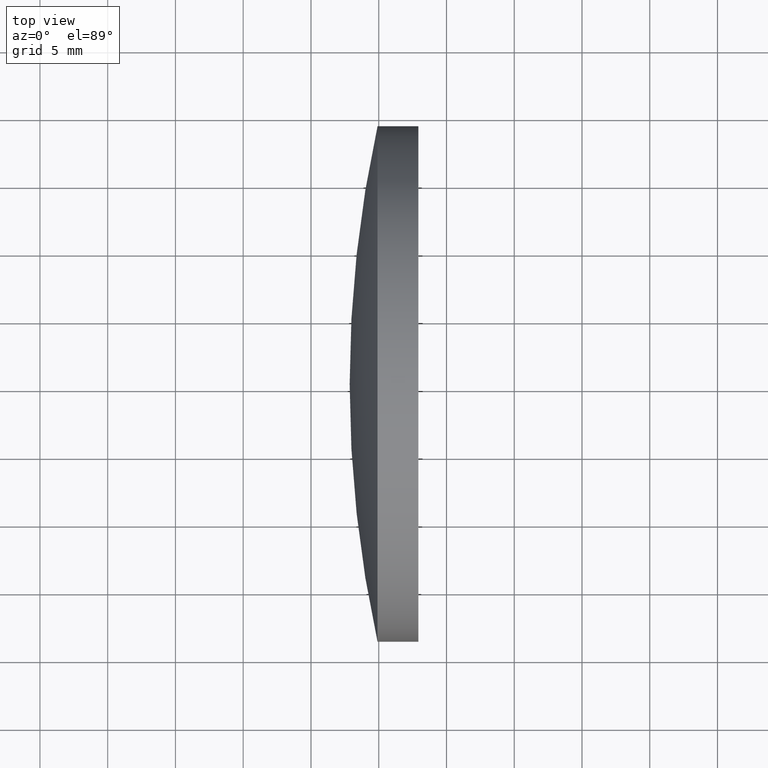
[diagram: clean part render]
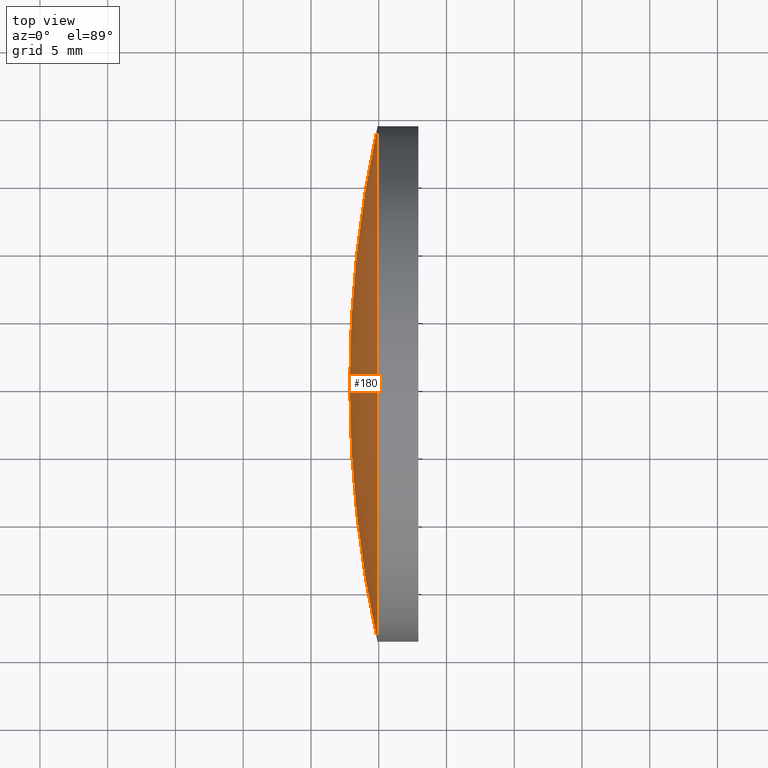
[diagram: same view with one face highlighted and labeled with its STEP entity id]
A machine part, top view. The second image highlights one B-rep face of the part: STEP entity #180.
In plain terms, the highlighted spherical surface has radius 89 mm.
Its self-contained STEP definition (entity closure, byte-faithful):
#3 = DIRECTION ( 'NONE',  ( -0.0000000000000000000, 0.0000000000000000000, -1.000000000000000000 ) ) ;
#4 = CIRCLE ( 'NONE', #153, 88.99999999999997200 ) ;
#7 = DIRECTION ( 'NONE',  ( -8.496118506040342700E-032, 1.224646799147353200E-016, -1.000000000000000000 ) ) ;
#8 = CARTESIAN_POINT ( 'NONE',  ( 122.8554213155558000, 65.21684047094025500, 0.0000000000000000000 ) ) ;
#11 = SPHERICAL_SURFACE ( 'NONE', #48, 89.00000000000000000 ) ;
#13 = CARTESIAN_POINT ( 'NONE',  ( 211.8554213155557900, 65.21684047094031200, 0.0000000000000000000 ) ) ;
#14 = VERTEX_POINT ( 'NONE', #156 ) ;
#20 = CIRCLE ( 'NONE', #84, 19.02499999999991000 ) ;
#30 = VERTEX_POINT ( 'NONE', #8 ) ;
#32 = DIRECTION ( 'NONE',  ( -1.000000000000000000, -6.937607244762875000E-016, -0.0000000000000000000 ) ) ;
#45 = DIRECTION ( 'NONE',  ( -0.0000000000000000000, 0.0000000000000000000, 1.000000000000000000 ) ) ;
#46 = CARTESIAN_POINT ( 'NONE',  ( 124.9126276233814000, 65.21684047094032600, 0.0000000000000000000 ) ) ;
#48 = AXIS2_PLACEMENT_3D ( 'NONE', #92, #3, #184 ) ;
#55 = ORIENTED_EDGE ( 'NONE', *, *, #183, .F. ) ;
#61 = DIRECTION ( 'NONE',  ( 1.000000000000000000, 0.0000000000000000000, 0.0000000000000000000 ) ) ;
#68 = ORIENTED_EDGE ( 'NONE', *, *, #102, .T. ) ;
#84 = AXIS2_PLACEMENT_3D ( 'NONE', #46, #32, #158 ) ;
#91 = DIRECTION ( 'NONE',  ( 0.0000000000000000000, 1.000000000000000000, 1.224646799147353000E-016 ) ) ;
#92 = CARTESIAN_POINT ( 'NONE',  ( 211.8554213155557900, 65.21684047094031200, 0.0000000000000000000 ) ) ;
#102 = EDGE_CURVE ( 'NONE', #14, #30, #4, .T. ) ;
#112 = CARTESIAN_POINT ( 'NONE',  ( 124.9126276233814100, 46.19184047094042000, 0.0000000000000000000 ) ) ;
#116 = EDGE_CURVE ( 'NONE', #129, #14, #20, .T. ) ;
#118 = AXIS2_PLACEMENT_3D ( 'NONE', #139, #7, #91 ) ;
#129 = VERTEX_POINT ( 'NONE', #112 ) ;
#130 = CIRCLE ( 'NONE', #118, 89.00000000000000000 ) ;
#139 = CARTESIAN_POINT ( 'NONE',  ( 211.8554213155557900, 65.21684047094031200, 0.0000000000000000000 ) ) ;
#140 = ORIENTED_EDGE ( 'NONE', *, *, #116, .T. ) ;
#153 = AXIS2_PLACEMENT_3D ( 'NONE', #13, #45, #61 ) ;
#156 = CARTESIAN_POINT ( 'NONE',  ( 124.9126276233813800, 84.24184047094024700, 2.329890535377829300E-015 ) ) ;
#158 = DIRECTION ( 'NONE',  ( 7.294500818824978600E-016, -1.000000000000000000, 0.0000000000000000000 ) ) ;
#168 = FACE_OUTER_BOUND ( 'NONE', #179, .T. ) ;
#179 = EDGE_LOOP ( 'NONE', ( #55, #140, #68 ) ) ;
#180 = ADVANCED_FACE ( 'NONE', ( #168 ), #11, .T. ) ;
#183 = EDGE_CURVE ( 'NONE', #129, #30, #130, .T. ) ;
#184 = DIRECTION ( 'NONE',  ( -6.237208003512115800E-016, 1.000000000000000000, 0.0000000000000000000 ) ) ;